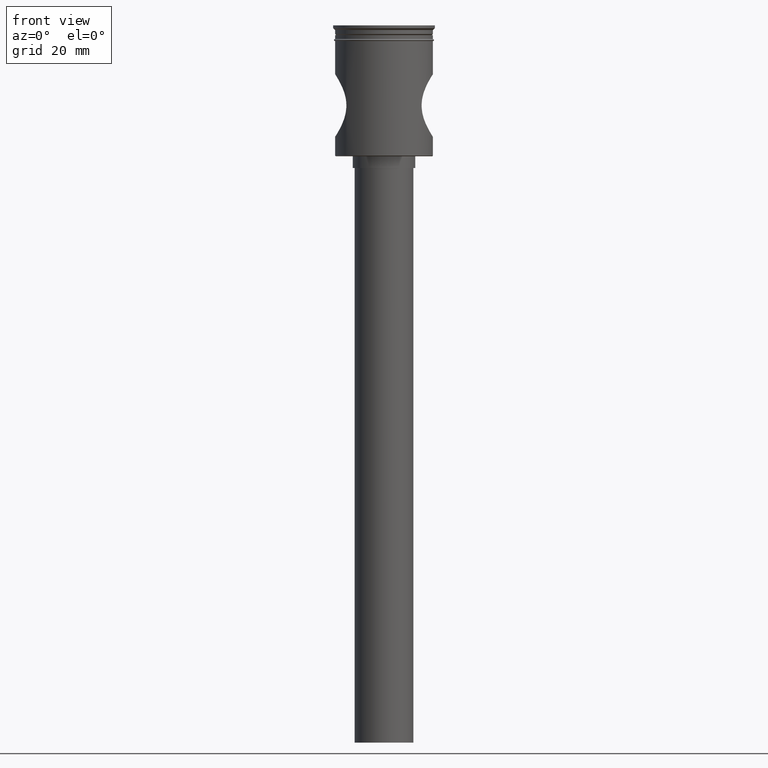
[diagram: clean part render]
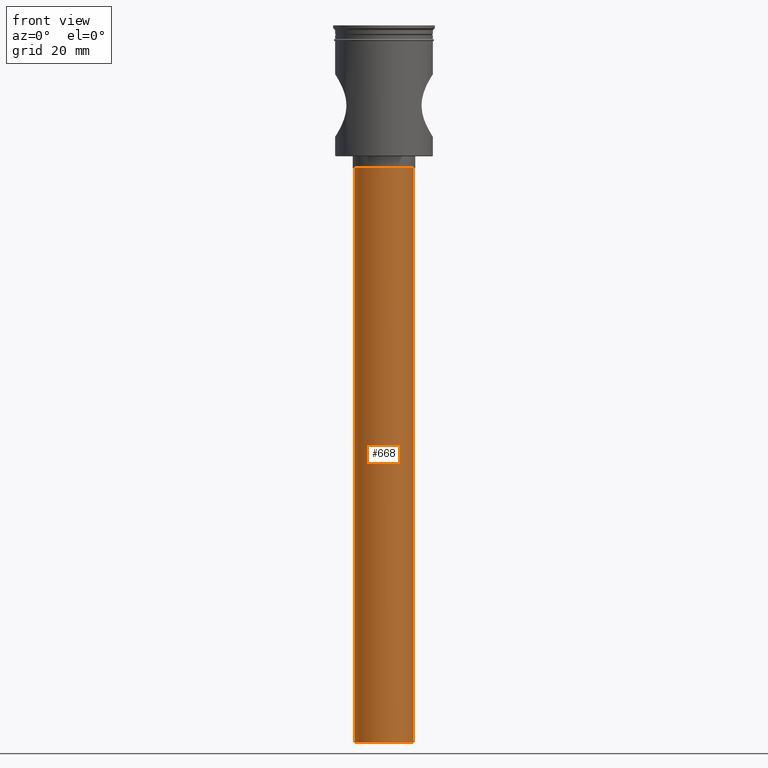
[diagram: same view with one face highlighted and labeled with its STEP entity id]
A machine part, front view. The second image highlights one B-rep face of the part: STEP entity #668.
In plain terms, the highlighted cylindrical surface (edge-blend (fillet) strip) has radius 7.5 mm, axis along (-0, -0, 1).
Its self-contained STEP definition (entity closure, byte-faithful):
#60 = EDGE_CURVE ( 'NONE', #1119, #1016, #901, .T. ) ;
#98 = FACE_OUTER_BOUND ( 'NONE', #669, .T. ) ;
#107 = LINE ( 'NONE', #1058, #466 ) ;
#108 = VERTEX_POINT ( 'NONE', #1416 ) ;
#123 = DIRECTION ( 'NONE',  ( -1.000000000000000000, 0.000000000000000000, 0.000000000000000000 ) ) ;
#132 = CARTESIAN_POINT ( 'NONE',  ( 7.500000000000000000, 0.000000000000000000, -36.50000000000000711 ) ) ;
#145 = AXIS2_PLACEMENT_3D ( 'NONE', #1408, #455, #574 ) ;
#214 = CARTESIAN_POINT ( 'NONE',  ( 0.000000000000000000, 0.000000000000000000, -36.50000000000000711 ) ) ;
#216 = DIRECTION ( 'NONE',  ( -0.000000000000000000, -0.000000000000000000, 1.000000000000000000 ) ) ;
#253 = ORIENTED_EDGE ( 'NONE', *, *, #60, .T. ) ;
#334 = VERTEX_POINT ( 'NONE', #474 ) ;
#379 = AXIS2_PLACEMENT_3D ( 'NONE', #214, #1285, #123 ) ;
#385 = ORIENTED_EDGE ( 'NONE', *, *, #1370, .F. ) ;
#442 = CIRCLE ( 'NONE', #379, 7.500000000000000000 ) ;
#455 = DIRECTION ( 'NONE',  ( -0.000000000000000000, -0.000000000000000000, 1.000000000000000000 ) ) ;
#466 = VECTOR ( 'NONE', #216, 1000.000000000000000 ) ;
#474 = CARTESIAN_POINT ( 'NONE',  ( -7.500000000000000000, 9.184850993605147944E-16, -183.5000000000000000 ) ) ;
#574 = DIRECTION ( 'NONE',  ( 1.000000000000000000, 0.000000000000000000, 0.000000000000000000 ) ) ;
#668 = ADVANCED_FACE ( 'NONE', ( #98 ), #831, .T. ) ;
#669 = EDGE_LOOP ( 'NONE', ( #684, #385, #253, #1155 ) ) ;
#684 = ORIENTED_EDGE ( 'NONE', *, *, #986, .F. ) ;
#745 = CIRCLE ( 'NONE', #1544, 7.500000000000000000 ) ;
#748 = DIRECTION ( 'NONE',  ( -1.000000000000000000, 0.000000000000000000, 0.000000000000000000 ) ) ;
#831 = CYLINDRICAL_SURFACE ( 'NONE', #145, 7.500000000000000000 ) ;
#868 = DIRECTION ( 'NONE',  ( 0.000000000000000000, 0.000000000000000000, -1.000000000000000000 ) ) ;
#901 = LINE ( 'NONE', #1368, #1464 ) ;
#986 = EDGE_CURVE ( 'NONE', #334, #108, #107, .T. ) ;
#987 = CARTESIAN_POINT ( 'NONE',  ( 0.000000000000000000, 0.000000000000000000, -183.5000000000000000 ) ) ;
#1016 = VERTEX_POINT ( 'NONE', #132 ) ;
#1022 = DIRECTION ( 'NONE',  ( -0.000000000000000000, -0.000000000000000000, 1.000000000000000000 ) ) ;
#1058 = CARTESIAN_POINT ( 'NONE',  ( -7.500000000000000000, 9.184850993605147944E-16, -183.5000000000000000 ) ) ;
#1072 = EDGE_CURVE ( 'NONE', #1016, #108, #442, .T. ) ;
#1119 = VERTEX_POINT ( 'NONE', #1500 ) ;
#1155 = ORIENTED_EDGE ( 'NONE', *, *, #1072, .T. ) ;
#1285 = DIRECTION ( 'NONE',  ( 0.000000000000000000, 0.000000000000000000, -1.000000000000000000 ) ) ;
#1368 = CARTESIAN_POINT ( 'NONE',  ( 7.500000000000000000, 0.000000000000000000, -183.5000000000000000 ) ) ;
#1370 = EDGE_CURVE ( 'NONE', #1119, #334, #745, .T. ) ;
#1408 = CARTESIAN_POINT ( 'NONE',  ( 0.000000000000000000, 0.000000000000000000, -183.5000000000000000 ) ) ;
#1416 = CARTESIAN_POINT ( 'NONE',  ( -7.500000000000000000, 9.184850993605147944E-16, -36.50000000000000711 ) ) ;
#1464 = VECTOR ( 'NONE', #1022, 1000.000000000000000 ) ;
#1500 = CARTESIAN_POINT ( 'NONE',  ( 7.500000000000000000, 0.000000000000000000, -183.5000000000000000 ) ) ;
#1544 = AXIS2_PLACEMENT_3D ( 'NONE', #987, #868, #748 ) ;